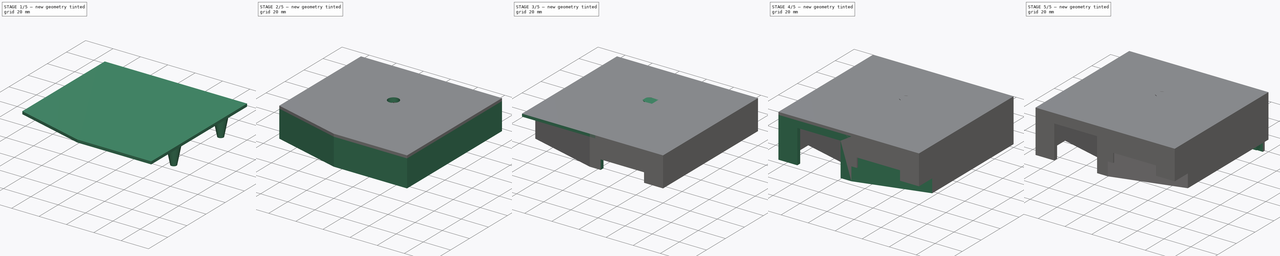
[diagram: build sequence overview — one tinted view per stage of 5, left to right]
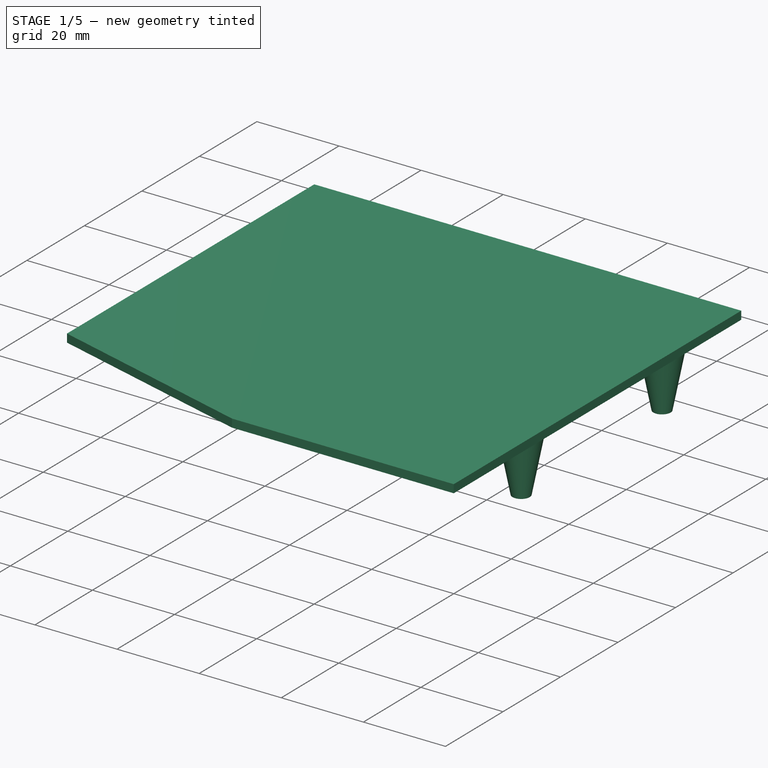
[diagram: stage 1 of 5 — iso view after this stage's code; geometry added in this stage tinted green]
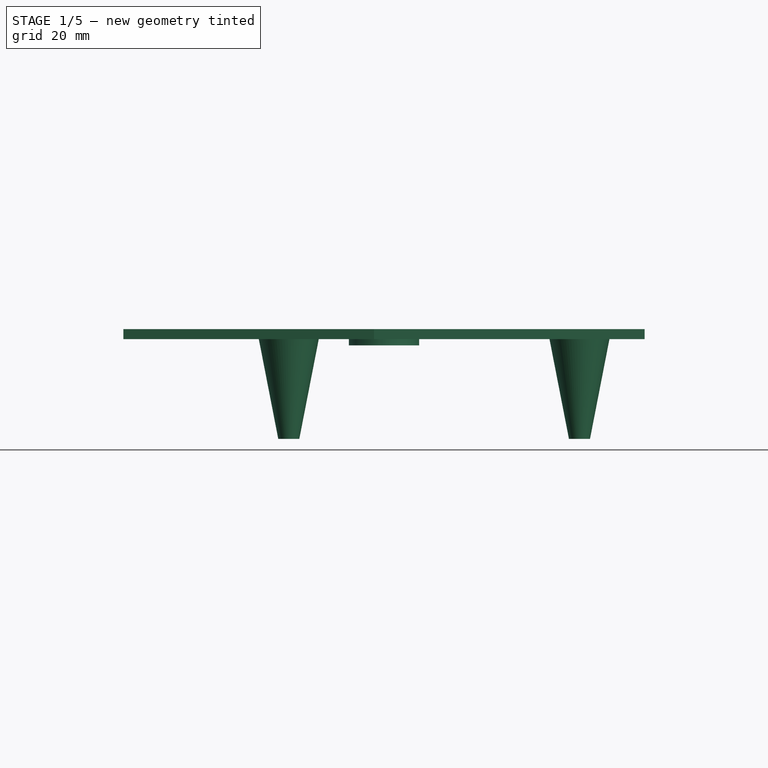
[diagram: stage 1 of 5 — front view after this stage's code; geometry added in this stage tinted green]
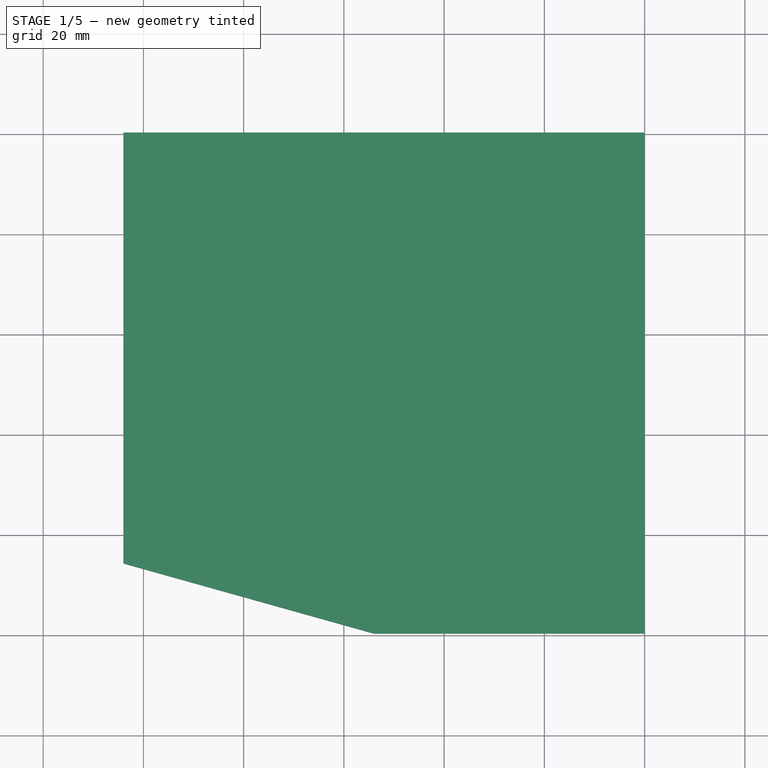
[diagram: stage 1 of 5 — top view after this stage's code; geometry added in this stage tinted green]
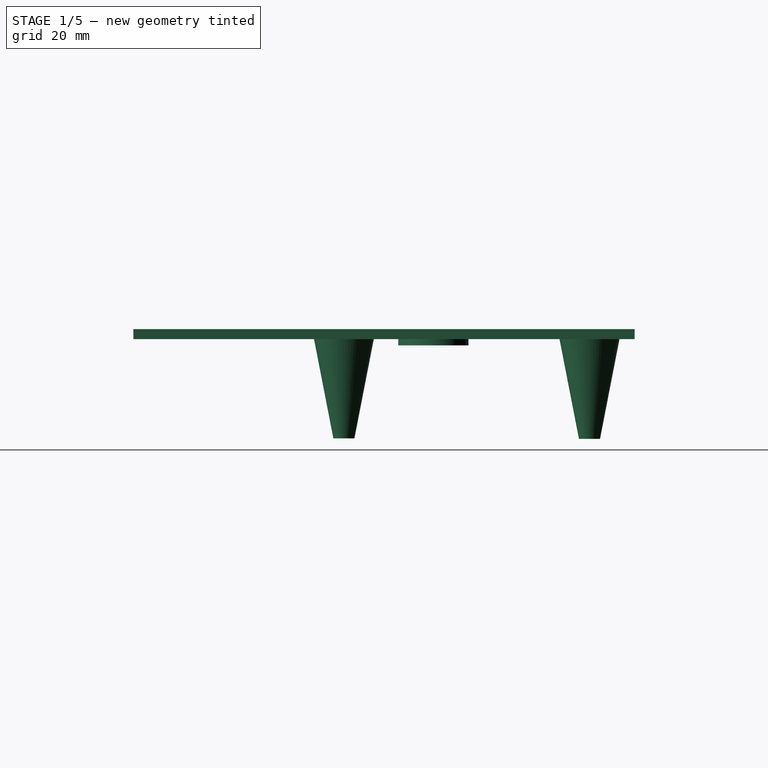
[diagram: stage 1 of 5 — right view after this stage's code; geometry added in this stage tinted green]
FCSTD DOCUMENT  (FreeCAD 0.21R)
Label: case
License: All rights reserved
LicenseURL: http://en.wikipedia.org/wiki/All_rights_reserved
objects: Sketcher::SketchObject×16, Part::Extrusion×16, Part::Cone×8, Part::MultiFuse×6, Part::Cut×4, App::Part×3, Part::Cylinder×1
note: 51 computed .brp shape members not serialized (recipe doc carries the construction recipe); baked Part::Feature solids carry a one-line shape summary decoded from their .brp

FEATURE [Sketcher::SketchObject] Sketch007  label="base_upper"
  FullyConstrained = true
  sketch-geometry (5):
    g0: LineSegment StartX=0 StartY=0 StartZ=0 EndX=0 EndY=-100 EndZ=0
    g1: LineSegment StartX=0 StartY=0 StartZ=0 EndX=-104 EndY=0 EndZ=0
    g2: LineSegment StartX=-104 StartY=0 StartZ=0 EndX=-104 EndY=-86 EndZ=0
    g3: LineSegment StartX=-104 StartY=-86 StartZ=0 EndX=-54 EndY=-100 EndZ=0
    g4: LineSegment StartX=-54 StartY=-100 StartZ=0 EndX=0 EndY=-100 EndZ=0
  constraints (15):
    c: Vertical(g0)
    c: Coincident(g1,g0)
    c: Horizontal(g1)
    c: Coincident(g2,g1)
    c: Vertical(g2)
    c: PointOnObject(g0,g-2)
    c: PointOnObject(g0,g-1)
    c: Distance(g1) = 104
    c: Distance(g2) = 86
    c: Coincident(g3,g2)
    c: Coincident(g4,g3)
    c: Coincident(g4,g0)
    c: Distance(g0) = 100
    c: Horizontal(g4)
    c: Distance(g4) = 54
FEATURE [Part::Extrusion] Extrude006
  Base = -> Sketch007
  Dir = (0,0,1)
  DirMode = 2
  FaceMakerClass = Part::FaceMakerBullseye
  LengthFwd = 2
  LengthRev = 0
  Solid = true
  Symmetric = false
FEATURE [Part::Cone] Cone004
  Angle = 360
  AttacherType = Attacher::AttachEngine3D
  Height = 20
  Placement = pos=(-13,-9,-19.9) rot=(0,0,1;3.14159rad)
  Radius1 = 2.1
  Radius2 = 6
FEATURE [Part::Cone] Cone005
  Angle = 360
  AttacherType = Attacher::AttachEngine3D
  Height = 20
  Placement = pos=(-13,-58,-19.8) rot=(0,0,1;3.14159rad)
  Radius1 = 2.1
  Radius2 = 6
FEATURE [Part::Cone] Cone006
  Angle = 360
  AttacherType = Attacher::AttachEngine3D
  Height = 20
  Placement = pos=(-71,-9,-19.9) rot=(0,0,1;0rad)
  Radius1 = 2.1
  Radius2 = 6
FEATURE [Part::Cone] Cone007
  Angle = 360
  AttacherType = Attacher::AttachEngine3D
  Height = 20
  Placement = pos=(-71,-58,-19.7) rot=(0,0,1;0rad)
  Radius1 = 2.1
  Radius2 = 6
FEATURE [App::Part] Part  label="Case lower (rpi)"
  Group = -> [Fusion,Sketch,Sketch001,Extrude,Sketch002,Extrude001,Extrude002,Sketch003,Extrude003,Cut,Cone,Cone001,Cone002,Cone003,Sketch011,Extrude010,Sketch018,Extrude017,Cut004,Fusion003]
  Origin = -> Origin
  Placement = pos=(0,0,0.3) rot=(0,0,1;0rad)
FEATURE [Part::Cylinder] Cylinder
  Angle = 360
  AttacherType = Attacher::AttachEngine3D
  FirstAngle = 0
  Height = 1.5
  Placement = pos=(-52,-40.15,0.25) rot=(1,0,0;3.14159rad)
  Radius = 7
  SecondAngle = 0
FEATURE [Part::MultiFuse] Fusion005
  Shapes = -> [Extrude006,Cylinder]
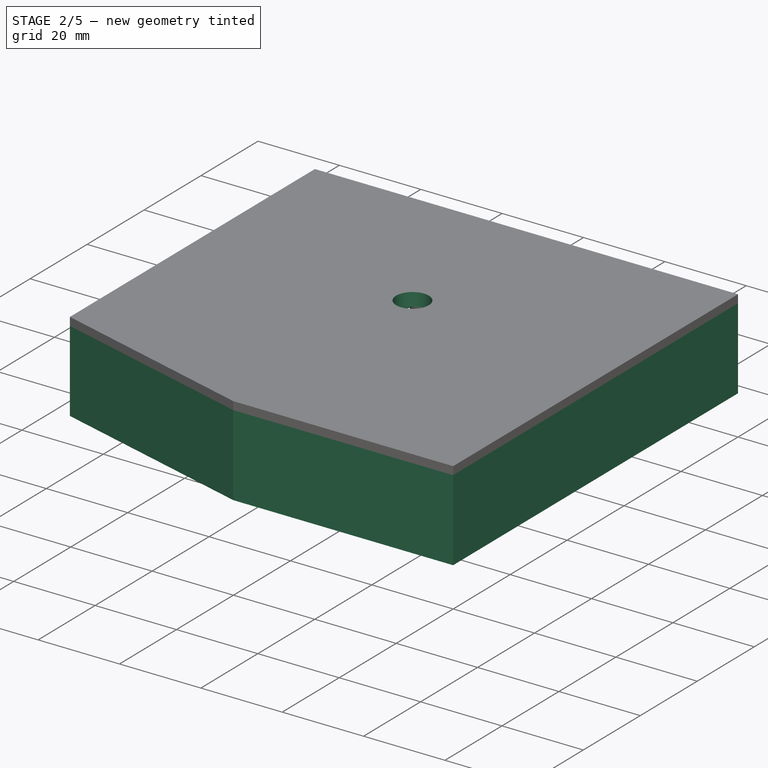
[diagram: stage 2 of 5 — iso view after this stage's code; geometry added in this stage tinted green]
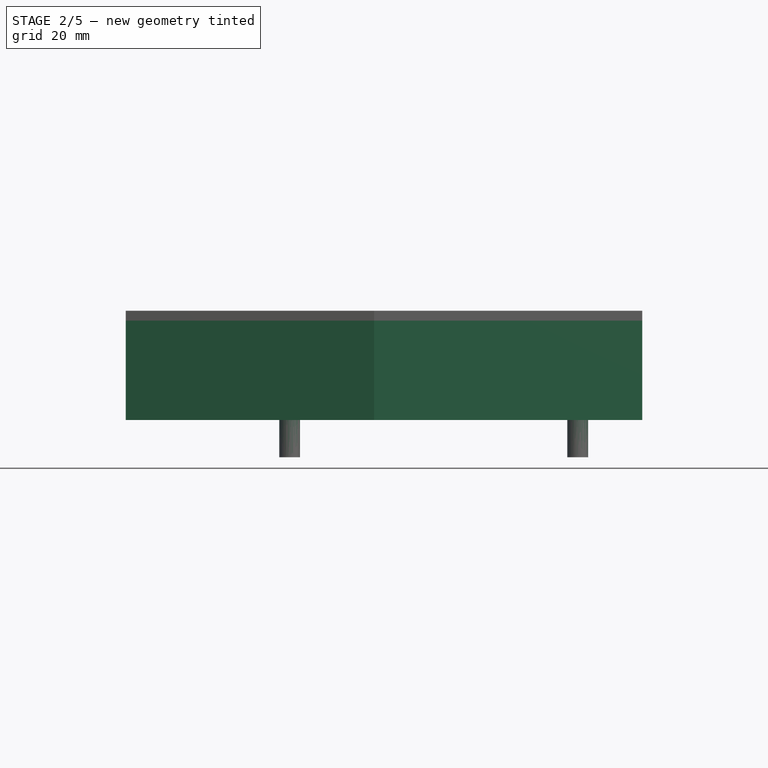
[diagram: stage 2 of 5 — front view after this stage's code; geometry added in this stage tinted green]
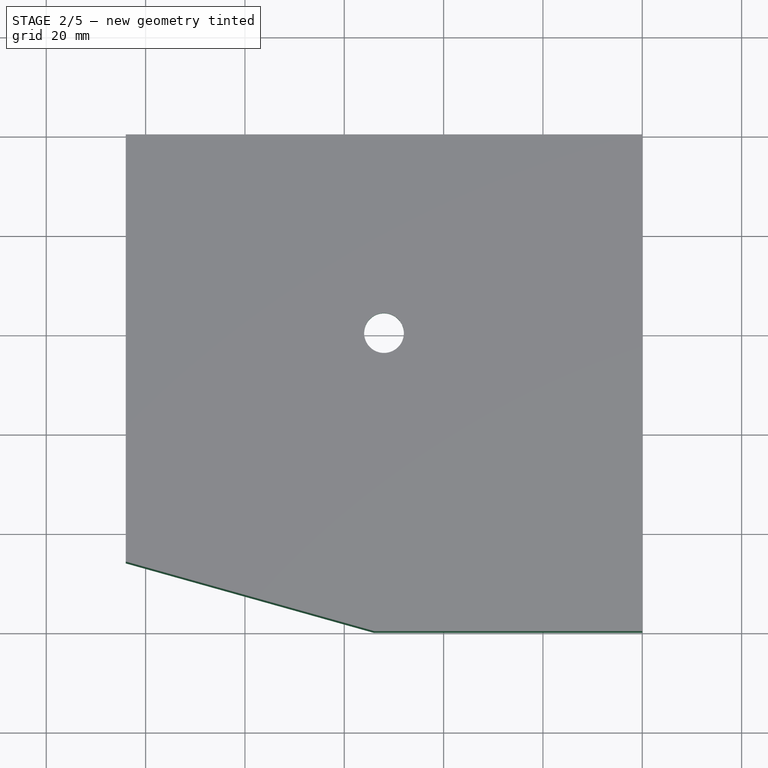
[diagram: stage 2 of 5 — top view after this stage's code; geometry added in this stage tinted green]
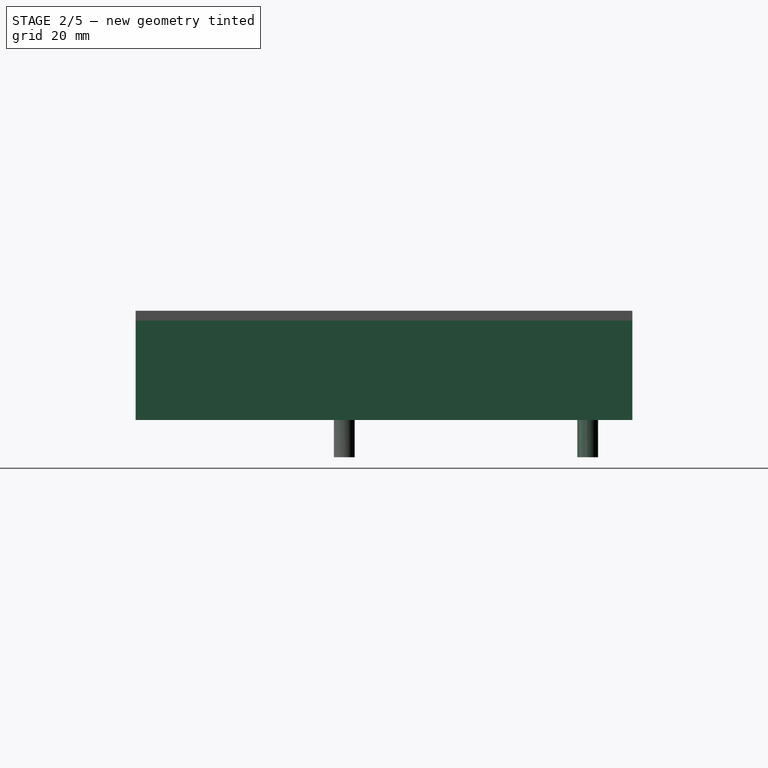
[diagram: stage 2 of 5 — right view after this stage's code; geometry added in this stage tinted green]
FEATURE [Sketcher::SketchObject] Sketch005  label="cam mounting cones"
  FullyConstrained = true
  sketch-geometry (5):
    g0: Circle CenterX=-62.5 CenterY=-27.5 CenterZ=0 NormalX=0 NormalY=0 NormalZ=1 AngleXU=0 Radius=2.1
    g1: Circle CenterX=-41.5 CenterY=-27.5 CenterZ=0 NormalX=0 NormalY=0 NormalZ=1 AngleXU=0 Radius=2.1
    g2: Circle CenterX=-41.5 CenterY=-40 CenterZ=0 NormalX=0 NormalY=0 NormalZ=1 AngleXU=0 Radius=2.1
    g3: Circle CenterX=-62.5 CenterY=-40 CenterZ=0 NormalX=0 NormalY=0 NormalZ=1 AngleXU=0 Radius=2.1
    g4: GeomPoint X=-52 Y=-40 Z=0
  constraints (14):
    c: Diameter(g0) = 4.2
    c: DistanceX(g0,g1) = 21
    c: DistanceY(g2,g1) = 12.5
    c: DistanceX(g3,g2) = 21
    c: DistanceY(g3,g0) = 12.5
    c: DistanceX(g1,g2) = 0
    c: DistanceY(g0,g1) = 0
    c: Equal(g0,g1)
    c: Equal(g1,g2)
    c: Equal(g2,g3)
    c: DistanceX(g4,g-1) = 52
    c: DistanceY(g4,g-1) = 40
    c: DistanceX(g4,g1) = 10.5
    c: DistanceY(g2,g4) = 0
FEATURE [Part::Extrusion] Extrude007
  Base = -> Sketch005
  Dir = (0,0,1)
  DirMode = 2
  FaceMakerClass = Part::FaceMakerBullseye
  LengthFwd = 0
  LengthRev = 4
  Solid = true
  Symmetric = false
FEATURE [Sketcher::SketchObject] Sketch006  label="walls_upper"
  FullyConstrained = true
  sketch-geometry (10):
    g0: LineSegment StartX=-3 StartY=-3 StartZ=0 EndX=-3 EndY=-97 EndZ=0
    g1: LineSegment StartX=-101 StartY=-3 StartZ=0 EndX=-101 EndY=-83.84 EndZ=0
    g2: LineSegment StartX=-101 StartY=-3 StartZ=0 EndX=-3 EndY=-3 EndZ=0
    g3: LineSegment StartX=0 StartY=0 StartZ=0 EndX=0 EndY=-100 EndZ=0
    g4: LineSegment StartX=0 StartY=0 StartZ=0 EndX=-104 EndY=0 EndZ=0
    g5: LineSegment StartX=-104 StartY=0 StartZ=0 EndX=-104 EndY=-86 EndZ=0
    g6: LineSegment StartX=-104 StartY=-86 StartZ=0 EndX=-54 EndY=-100 EndZ=0
    g7: LineSegment StartX=-54 StartY=-100 StartZ=0 EndX=0 EndY=-100 EndZ=0
    g8: LineSegment StartX=-101 StartY=-83.84 StartZ=0 EndX=-54 EndY=-97 EndZ=0
    g9: LineSegment StartX=-54 StartY=-97 StartZ=0 EndX=-3 EndY=-97 EndZ=0
  constraints (30):
    c: Vertical(g0)
    c: Vertical(g1)
    c: Coincident(g2,g1)
    c: Coincident(g2,g0)
    c: Horizontal(g2)
    c: Vertical(g3)
    c: DistanceX(g0,g3) = 3
    c: Coincident(g4,g3)
    c: Horizontal(g4)
    c: Coincident(g5,g4)
    c: Vertical(g5)
    c: DistanceY(g1,g4) = 3
    c: DistanceX(g4,g1) = 3
    c: Distance(g4) = 104
    c: PointOnObject(g3,g-2)
    c: PointOnObject(g3,g-1)
    c: Distance(g5) = 86
    c: Coincident(g6,g5)
    c: Coincident(g7,g6)
    c: Coincident(g7,g3)
    c: Coincident(g8,g1)
    c: Distance(g3) = 100
    c: DistanceX(g8,g6) = 0
    c: Coincident(g9,g8)
    c: Coincident(g9,g0)
    c: Distance(g7) = 54
    c: Parallel(g8,g6)
    c: DistanceY(g3,g0) = 3
    c: Horizontal(g9)
    c: Horizontal(g7)
FEATURE [Part::Extrusion] Extrude005
  Base = -> Sketch006
  Dir = (0,0,1)
  DirMode = 2
  FaceMakerClass = Part::FaceMakerBullseye
  LengthFwd = 0
  LengthRev = 20
  Solid = true
  Symmetric = false
FEATURE [Sketcher::SketchObject] Sketch008  label="camera hole"
  FullyConstrained = true
  sketch-geometry (1):
    g0: Circle CenterX=-52 CenterY=-40 CenterZ=0 NormalX=0 NormalY=0 NormalZ=1 AngleXU=0 Radius=4
  constraints (3):
    c: DistanceY(g0,g-1) = 40
    c: DistanceX(g0,g-1) = 52
    c: Diameter(g0) = 8
FEATURE [Part::Extrusion] Extrude008
  Base = -> Sketch008
  Dir = (0,0,1)
  DirMode = 2
  FaceMakerClass = Part::FaceMakerBullseye
  LengthFwd = 5
  LengthRev = 5
  Solid = true
  Symmetric = false
FEATURE [Sketcher::SketchObject] Sketch012  label="cam mounting cones001"
  FullyConstrained = true
  sketch-geometry (5):
    g0: Circle CenterX=-62.5 CenterY=-27.5 CenterZ=0 NormalX=0 NormalY=0 NormalZ=1 AngleXU=0 Radius=0.95
    g1: Circle CenterX=-41.5 CenterY=-27.5 CenterZ=0 NormalX=0 NormalY=0 NormalZ=1 AngleXU=0 Radius=0.95
    g2: Circle CenterX=-41.5 CenterY=-40 CenterZ=0 NormalX=0 NormalY=0 NormalZ=1 AngleXU=0 Radius=0.95
    g3: Circle CenterX=-62.5 CenterY=-40 CenterZ=0 NormalX=0 NormalY=0 NormalZ=1 AngleXU=0 Radius=0.95
    g4: GeomPoint X=-52 Y=-40 Z=0
  constraints (14):
    c: Diameter(g0) = 1.9
    c: DistanceX(g0,g1) = 21
    c: DistanceY(g2,g1) = 12.5
    c: DistanceX(g3,g2) = 21
    c: DistanceY(g3,g0) = 12.5
    c: DistanceX(g1,g2) = 0
    c: DistanceY(g0,g1) = 0
    c: Equal(g0,g1)
    c: Equal(g1,g2)
    c: Equal(g2,g3)
    c: DistanceX(g4,g-1) = 52
    c: DistanceY(g4,g-1) = 40
    c: DistanceX(g4,g1) = 10.5
    c: DistanceY(g2,g4) = 0
FEATURE [Part::Extrusion] Extrude011
  Base = -> Sketch012
  Dir = (0,0,1)
  DirMode = 2
  FaceMakerClass = Part::FaceMakerBullseye
  LengthFwd = 0
  LengthRev = 7
  Solid = true
  Symmetric = false
FEATURE [Sketcher::SketchObject] Sketch013  label="rpi mounting cones002"
  FullyConstrained = true
  sketch-geometry (8):
    g0: Circle CenterX=-71 CenterY=-9 CenterZ=0 NormalX=0 NormalY=0 NormalZ=1 AngleXU=0 Radius=2.1
    g1: Circle CenterX=-13 CenterY=-9 CenterZ=0 NormalX=0 NormalY=0 NormalZ=1 AngleXU=0 Radius=2.1
    g2: Circle CenterX=-13 CenterY=-58 CenterZ=0 NormalX=0 NormalY=0 NormalZ=1 AngleXU=0 Radius=2.1
    g3: Circle CenterX=-71 CenterY=-58 CenterZ=0 NormalX=0 NormalY=0 NormalZ=1 AngleXU=0 Radius=2.1
    g4: Circle CenterX=-71 CenterY=-9 CenterZ=0 NormalX=0 NormalY=0 NormalZ=1 AngleXU=0 Radius=1.25
    g5: Circle CenterX=-13 CenterY=-9 CenterZ=0 NormalX=0 NormalY=0 NormalZ=1 AngleXU=0 Radius=1.25
    g6: Circle CenterX=-13 CenterY=-58 CenterZ=0 NormalX=0 NormalY=0 NormalZ=1 AngleXU=0 Radius=1.25
    g7: Circle CenterX=-71 CenterY=-58 CenterZ=0 NormalX=0 NormalY=0 NormalZ=1 AngleXU=0 Radius=1.25
  constraints (20):
    c: Diameter(g0) = 4.2
    c: DistanceX(g0,g1) = 58
    c: DistanceY(g2,g1) = 49
    c: DistanceX(g3,g2) = 58
    c: DistanceY(g3,g0) = 49
    c: DistanceX(g1,g-1) = 13
    c: DistanceY(g1,g-1) = 9
    c: DistanceX(g1,g2) = 0
    c: DistanceY(g0,g1) = 0
    c: Equal(g0,g1)
    c: Equal(g1,g2)
    c: Equal(g2,g3)
    c: Coincident(g4,g0)
    c: Coincident(g5,g1)
    c: Coincident(g6,g2)
    c: Coincident(g7,g3)
    c: Equal(g4,g5)
    c: Equal(g4,g6)
    c: Equal(g4,g7)
    c: Diameter(g4) = 2.5
FEATURE [Part::Extrusion] Extrude012
  Base = -> Sketch013
  Dir = (0,0,1)
  DirMode = 2
  FaceMakerClass = Part::FaceMakerBullseye
  LengthFwd = 0
  LengthRev = 27.5
  Solid = true
  Symmetric = false
FEATURE [Part::Cut] Cut002
  Base = -> Fusion005
  Tool = -> Extrude008
FEATURE [Part::MultiFuse] Fusion001
  Shapes = -> [Extrude005,Extrude007,Cut002,Extrude011,Extrude012]
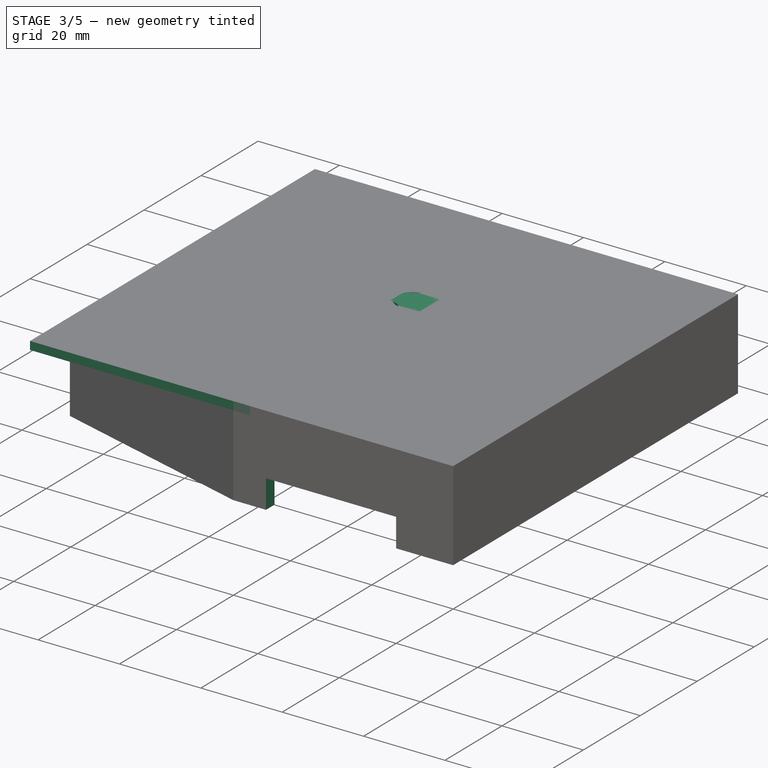
[diagram: stage 3 of 5 — iso view after this stage's code; geometry added in this stage tinted green]
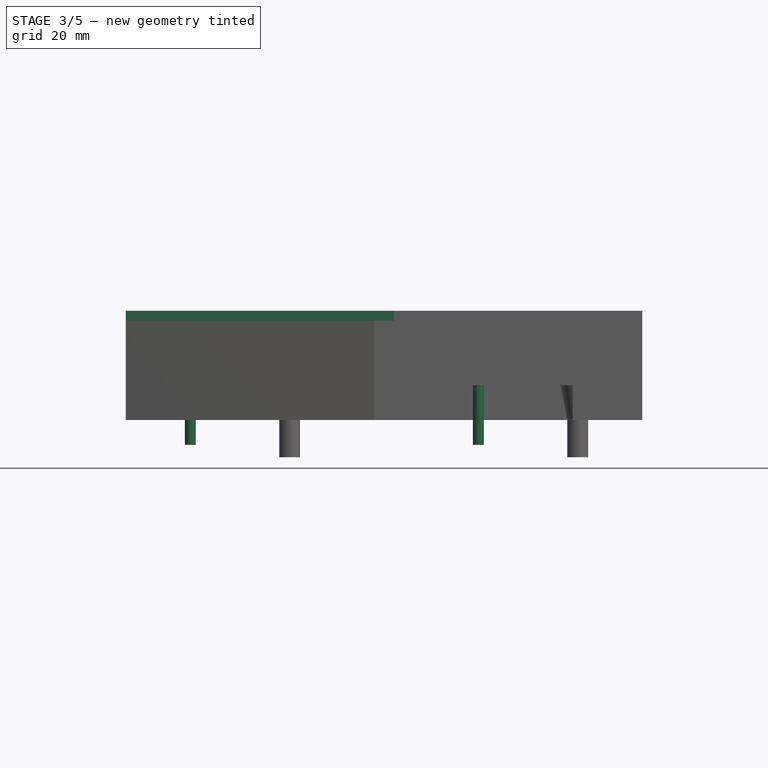
[diagram: stage 3 of 5 — front view after this stage's code; geometry added in this stage tinted green]
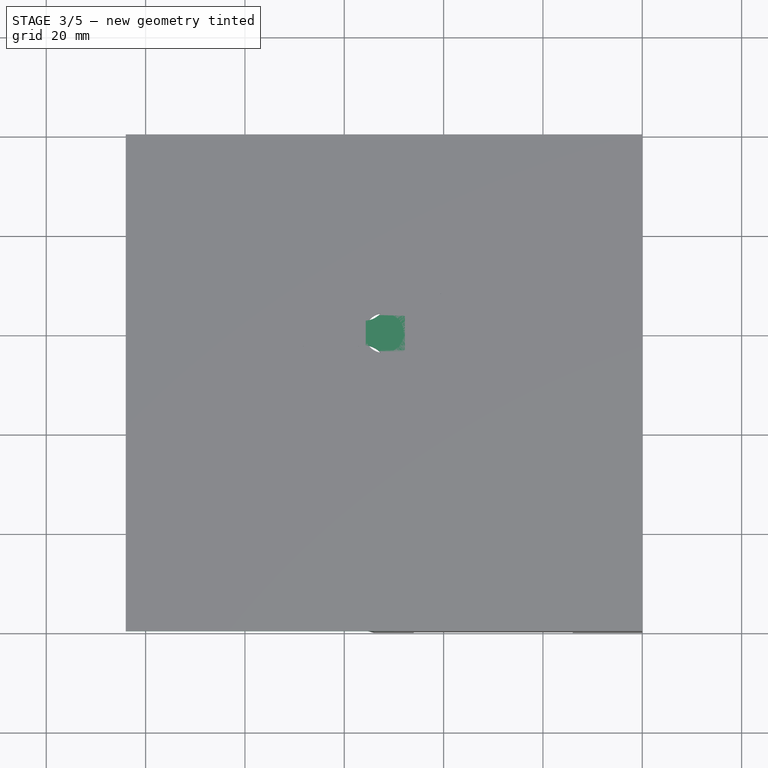
[diagram: stage 3 of 5 — top view after this stage's code; geometry added in this stage tinted green]
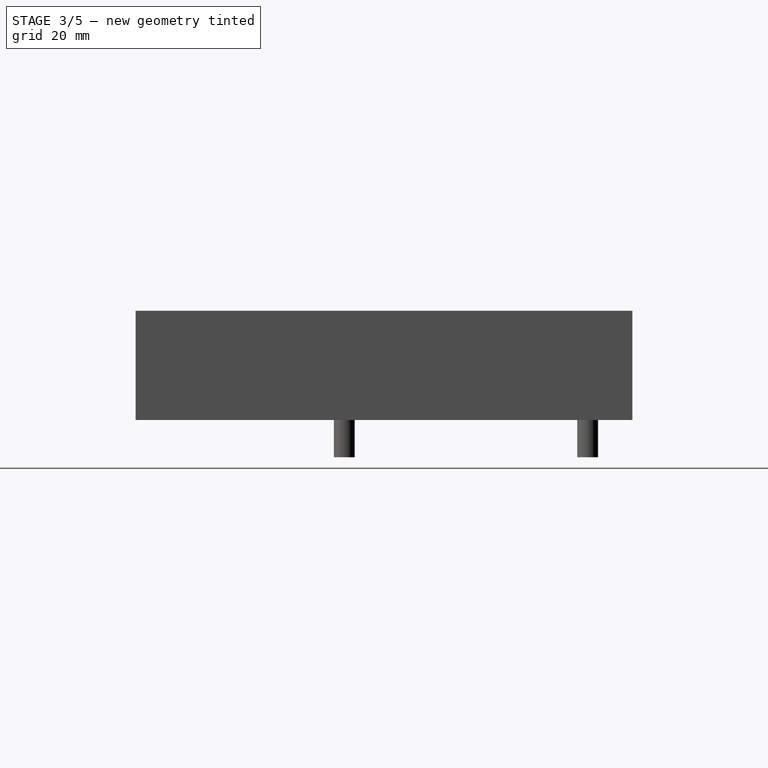
[diagram: stage 3 of 5 — right view after this stage's code; geometry added in this stage tinted green]
FEATURE [Sketcher::SketchObject] Sketch002  label="base"
  FullyConstrained = true
  sketch-geometry (5):
    g0: LineSegment StartX=0 StartY=0 StartZ=0 EndX=0 EndY=-86 EndZ=0
    g1: LineSegment StartX=0 StartY=0 StartZ=0 EndX=-104 EndY=0 EndZ=0
    g2: LineSegment StartX=-104 StartY=0 StartZ=0 EndX=-104 EndY=-100 EndZ=0
    g3: LineSegment StartX=-104 StartY=-100 StartZ=0 EndX=-50 EndY=-100 EndZ=0
    g4: LineSegment StartX=0 StartY=-86 StartZ=0 EndX=-50 EndY=-100 EndZ=0
  constraints (15):
    c: Vertical(g0)
    c: Coincident(g1,g0)
    c: Horizontal(g1)
    c: Coincident(g2,g1)
    c: Vertical(g2)
    c: PointOnObject(g0,g-2)
    c: PointOnObject(g0,g-1)
    c: Distance(g1) = 104
    c: Distance(g2) = 100
    c: Coincident(g3,g2)
    c: Horizontal(g3)
    c: Distance(g0) = 86
    c: Coincident(g4,g0)
    c: Coincident(g4,g3)
    c: Distance(g3) = 54
FEATURE [Part::Extrusion] Extrude001
  Base = -> Sketch002
  Dir = (0,0,1)
  DirMode = 2
  FaceMakerClass = Part::FaceMakerBullseye
  LengthFwd = 2
  LengthRev = 0
  Solid = true
  Symmetric = false
FEATURE [Sketcher::SketchObject] Sketch003  label="air flow holes"
  FullyConstrained = true
  sketch-geometry (12):
    g0: Circle CenterX=-78 CenterY=-19 CenterZ=0 NormalX=0 NormalY=0 NormalZ=1 AngleXU=0 Radius=4.5
    g1: Circle CenterX=-67 CenterY=-19 CenterZ=0 NormalX=0 NormalY=0 NormalZ=1 AngleXU=0 Radius=4.5
    g2: Circle CenterX=-56 CenterY=-19 CenterZ=0 NormalX=0 NormalY=0 NormalZ=1 AngleXU=0 Radius=4.5
    g3: Circle CenterX=-45 CenterY=-19 CenterZ=0 NormalX=0 NormalY=0 NormalZ=1 AngleXU=0 Radius=4.5
    g4: Circle CenterX=-78 CenterY=-33 CenterZ=0 NormalX=0 NormalY=0 NormalZ=1 AngleXU=0 Radius=4.5
    g5: Circle CenterX=-67 CenterY=-33 CenterZ=0 NormalX=0 NormalY=0 NormalZ=1 AngleXU=0 Radius=4.5
    g6: Circle CenterX=-56 CenterY=-33 CenterZ=0 NormalX=0 NormalY=0 NormalZ=1 AngleXU=0 Radius=4.5
    g7: Circle CenterX=-45 CenterY=-33 CenterZ=0 NormalX=0 NormalY=0 NormalZ=1 AngleXU=0 Radius=4.5
    g8: Circle CenterX=-78 CenterY=-47 CenterZ=0 NormalX=0 NormalY=0 NormalZ=1 AngleXU=0 Radius=4.5
    g9: Circle CenterX=-67 CenterY=-47 CenterZ=0 NormalX=0 NormalY=0 NormalZ=1 AngleXU=0 Radius=4.5
    g10: Circle CenterX=-56 CenterY=-47 CenterZ=0 NormalX=0 NormalY=0 NormalZ=1 AngleXU=0 Radius=4.5
    g11: Circle CenterX=-45 CenterY=-47 CenterZ=0 NormalX=0 NormalY=0 NormalZ=1 AngleXU=0 Radius=4.5
  constraints (36):
    c: Equal(g0,g1)
    c: Equal(g1,g2)
    c: Equal(g2,g3)
    c: Equal(g3,g4)
    c: Equal(g4,g5)
    c: Equal(g5,g6)
    c: Equal(g6,g7)
    c: Equal(g7,g8)
    c: Equal(g8,g9)
    c: Equal(g9,g10)
    c: Equal(g10,g11)
    c: Horizontal(g0,g1)
    c: Horizontal(g1,g2)
    c: Horizontal(g2,g3)
    c: Horizontal(g4,g5)
    c: Horizontal(g5,g6)
    c: Horizontal(g6,g7)
    c: Horizontal(g8,g9)
    c: Horizontal(g9,g10)
    c: Horizontal(g10,g11)
    c: Vertical(g0,g4)
    c: Vertical(g4,g8)
    c: Vertical(g1,g5)
    c: Vertical(g5,g9)
    c: Vertical(g2,g6)
    c: Vertical(g6,g10)
    c: Vertical(g3,g7)
    c: Vertical(g7,g11)
    c: DistanceY(g7,g3) = 14
    c: DistanceY(g11,g7) = 14
    c: DistanceY(g3,g-1) = 19
    c: DistanceX(g3,g-1) = 45
    c: DistanceX(g2,g3) = 11
    c: DistanceX(g1,g2) = 11
    c: DistanceX(g0,g1) = 11
    c: Diameter(g3) = 9
FEATURE [Part::Extrusion] Extrude003
  Base = -> Sketch003
  Dir = (0,0,1)
  DirMode = 2
  FaceMakerClass = Part::FaceMakerBullseye
  LengthFwd = 3
  LengthRev = 1
  Solid = true
  Symmetric = false
FEATURE [Part::Cut] Cut
  Base = -> Extrude001
  Tool = -> Extrude003
FEATURE [Sketcher::SketchObject] Sketch011  label="rpi mounting cones001"
  FullyConstrained = true
  sketch-geometry (4):
    g0: Circle CenterX=-91 CenterY=-9 CenterZ=0 NormalX=0 NormalY=0 NormalZ=1 AngleXU=0 Radius=1.1
    g1: Circle CenterX=-33 CenterY=-9 CenterZ=0 NormalX=0 NormalY=0 NormalZ=1 AngleXU=0 Radius=1.1
    g2: Circle CenterX=-33 CenterY=-58 CenterZ=0 NormalX=0 NormalY=0 NormalZ=1 AngleXU=0 Radius=1.1
    g3: Circle CenterX=-91 CenterY=-58 CenterZ=0 NormalX=0 NormalY=0 NormalZ=1 AngleXU=0 Radius=1.1
  constraints (12):
    c: Diameter(g0) = 2.2
    c: DistanceX(g0,g1) = 58
    c: DistanceY(g2,g1) = 49
    c: DistanceX(g3,g2) = 58
    c: DistanceY(g3,g0) = 49
    c: DistanceX(g1,g-1) = 33
    c: DistanceY(g1,g-1) = 9
    c: DistanceX(g1,g2) = 0
    c: DistanceY(g0,g1) = 0
    c: Equal(g0,g1)
    c: Equal(g1,g2)
    c: Equal(g2,g3)
FEATURE [Part::Extrusion] Extrude010
  Base = -> Sketch011
  Dir = (0,0,1)
  DirMode = 2
  FaceMakerClass = Part::FaceMakerBullseye
  LengthFwd = -25
  LengthRev = 0
  Solid = true
  Symmetric = false
FEATURE [Sketcher::SketchObject] Sketch009  label="cable hole upper"
  FullyConstrained = true
  MapMode = 5
  Placement = pos=(0,-100,0) rot=(1,0,0;1.5708rad)
  Support = -> [Fusion001]
  sketch-geometry (4):
    g0: LineSegment StartX=-46 StartY=-13 StartZ=0 EndX=-14 EndY=-13 EndZ=0
    g1: LineSegment StartX=-14 StartY=-13 StartZ=0 EndX=-14 EndY=-45 EndZ=0
    g2: LineSegment StartX=-14 StartY=-45 StartZ=0 EndX=-46 EndY=-45 EndZ=0
    g3: LineSegment StartX=-46 StartY=-45 StartZ=0 EndX=-46 EndY=-13 EndZ=0
  constraints (12):
    c: Coincident(g0,g1)
    c: Coincident(g1,g2)
    c: Coincident(g2,g3)
    c: Coincident(g3,g0)
    c: Horizontal(g0)
    c: Horizontal(g2)
    c: Vertical(g1)
    c: Vertical(g3)
    c: Distance(g1) = 32
    c: Distance(g0) = 32
    c: DistanceX(g0,g-1) = 14
    c: DistanceY(g0,g-1) = 13
FEATURE [Part::Extrusion] Extrude009
  Base = -> Sketch009
  Dir = (0,-1,2e-16)
  DirMode = 2
  FaceMakerClass = Part::FaceMakerBullseye
  LengthFwd = 0
  LengthRev = 3
  Solid = true
  Symmetric = false
FEATURE [Part::Cut] Cut003
  Base = -> Fusion001
  Tool = -> Extrude009
FEATURE [Part::MultiFuse] Fusion004
  Shapes = -> [Cut003,Cone004,Cone005,Cone006,Cone007]
FEATURE [App::Part] Part001  label="Case upper"
  Group = -> [Cut002,Cut003,Extrude005,Extrude006,Extrude007,Extrude008,Extrude009,Fusion001,Sketch005,Sketch006,Sketch007,Sketch008,Sketch009,Sketch012,Extrude011,Sketch013,Extrude012,Cone004,Cone005,Cone006,Cone007,Fusion004,Cylinder,Fusion005]
  Origin = -> Origin001
  Placement = pos=(-104,0,-49.8) rot=(0,1,0;3.14159rad)
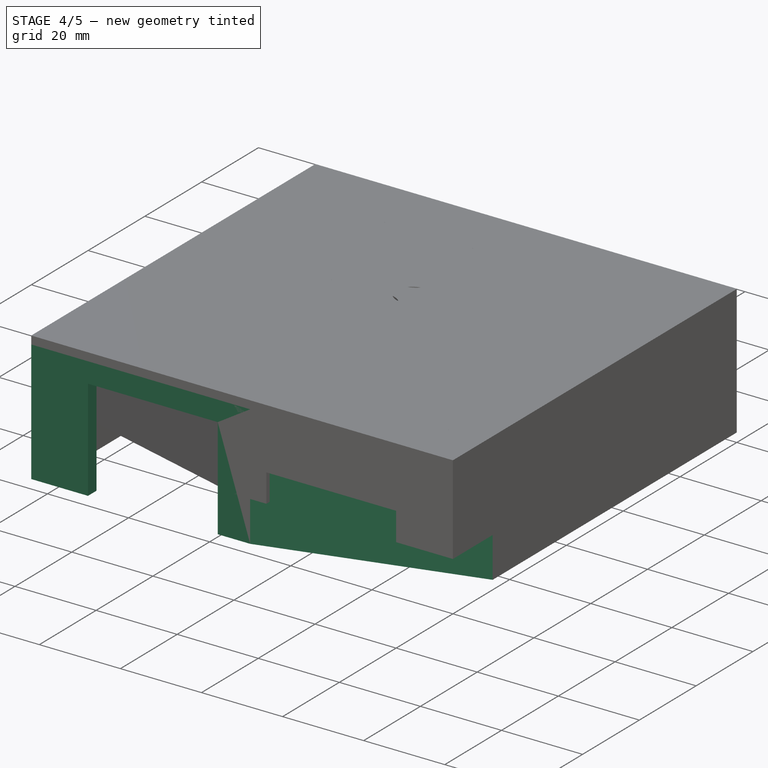
[diagram: stage 4 of 5 — iso view after this stage's code; geometry added in this stage tinted green]
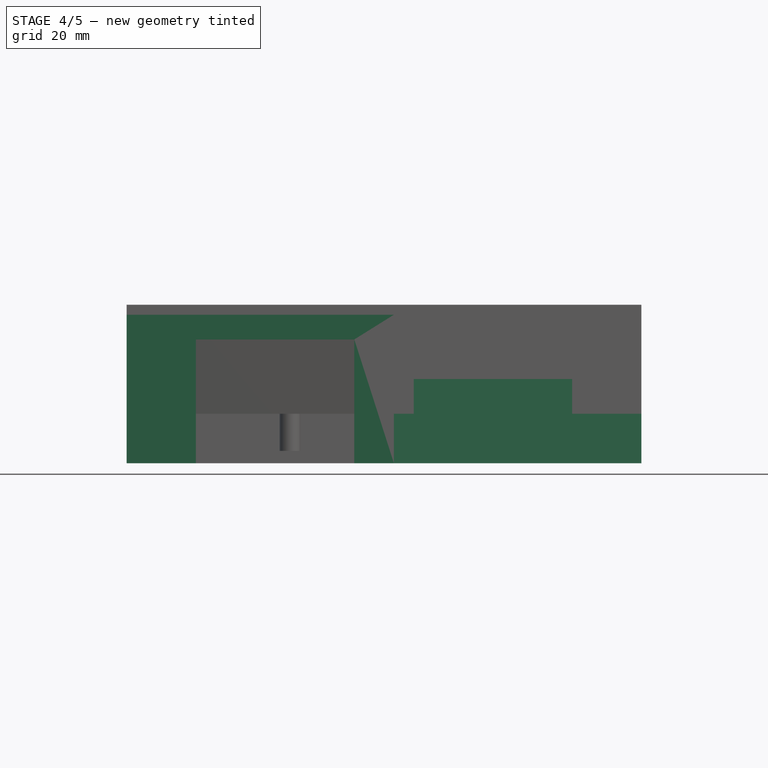
[diagram: stage 4 of 5 — front view after this stage's code; geometry added in this stage tinted green]
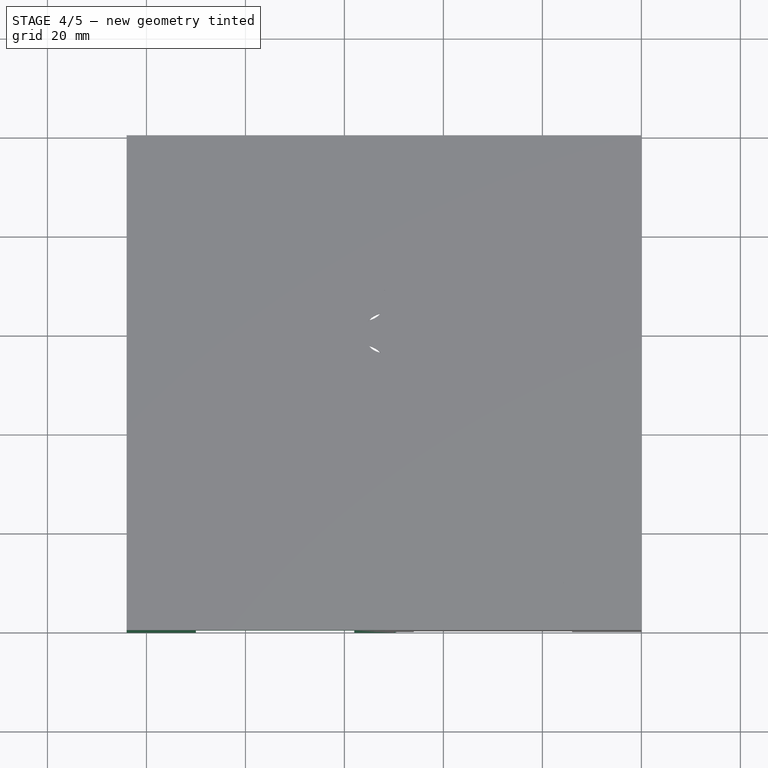
[diagram: stage 4 of 5 — top view after this stage's code; geometry added in this stage tinted green]
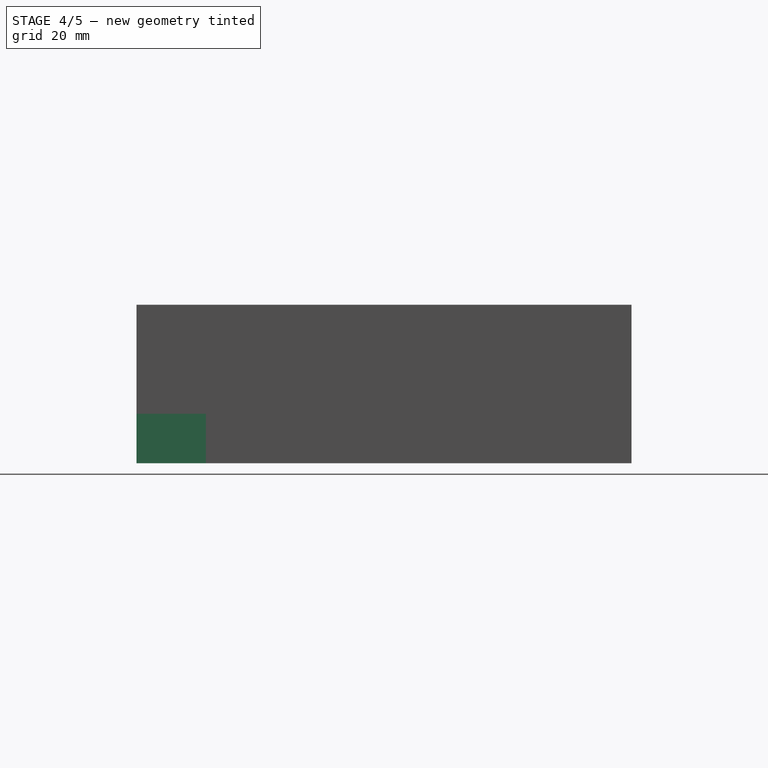
[diagram: stage 4 of 5 — right view after this stage's code; geometry added in this stage tinted green]
FEATURE [Sketcher::SketchObject] Sketch  label="rpi mounting cones"
  FullyConstrained = true
  sketch-geometry (4):
    g0: Circle CenterX=-91 CenterY=-9 CenterZ=0 NormalX=0 NormalY=0 NormalZ=1 AngleXU=0 Radius=2.1
    g1: Circle CenterX=-33 CenterY=-9 CenterZ=0 NormalX=0 NormalY=0 NormalZ=1 AngleXU=0 Radius=2.1
    g2: Circle CenterX=-33 CenterY=-58 CenterZ=0 NormalX=0 NormalY=0 NormalZ=1 AngleXU=0 Radius=2.1
    g3: Circle CenterX=-91 CenterY=-58 CenterZ=0 NormalX=0 NormalY=0 NormalZ=1 AngleXU=0 Radius=2.1
  constraints (12):
    c: Diameter(g0) = 4.2
    c: DistanceX(g0,g1) = 58
    c: DistanceY(g2,g1) = 49
    c: DistanceX(g3,g2) = 58
    c: DistanceY(g3,g0) = 49
    c: DistanceX(g1,g-1) = 33
    c: DistanceY(g1,g-1) = 9
    c: DistanceX(g1,g2) = 0
    c: DistanceY(g0,g1) = 0
    c: Equal(g0,g1)
    c: Equal(g1,g2)
    c: Equal(g2,g3)
FEATURE [Sketcher::SketchObject] Sketch001  label="walls"
  FullyConstrained = true
  sketch-geometry (10):
    g0: LineSegment StartX=-3 StartY=-3 StartZ=0 EndX=-3 EndY=-83.84 EndZ=0
    g1: LineSegment StartX=-101 StartY=-3 StartZ=0 EndX=-101 EndY=-97 EndZ=0
    g2: LineSegment StartX=-101 StartY=-3 StartZ=0 EndX=-3 EndY=-3 EndZ=0
    g3: LineSegment StartX=0 StartY=0 StartZ=0 EndX=0 EndY=-86 EndZ=0
    g4: LineSegment StartX=0 StartY=0 StartZ=0 EndX=-104 EndY=0 EndZ=0
    g5: LineSegment StartX=-104 StartY=0 StartZ=0 EndX=-104 EndY=-100 EndZ=0
    g6: LineSegment StartX=-104 StartY=-100 StartZ=0 EndX=-50 EndY=-100 EndZ=0
    g7: LineSegment StartX=0 StartY=-86 StartZ=0 EndX=-50 EndY=-100 EndZ=0
    g8: LineSegment StartX=-101 StartY=-97 StartZ=0 EndX=-50 EndY=-97 EndZ=0
    g9: LineSegment StartX=-50 StartY=-97 StartZ=0 EndX=-3 EndY=-83.84 EndZ=0
  constraints (30):
    c: Vertical(g0)
    c: Vertical(g1)
    c: Coincident(g2,g1)
    c: Coincident(g2,g0)
    c: Horizontal(g2)
    c: Vertical(g3)
    c: DistanceX(g0,g3) = 3
    c: Coincident(g4,g3)
    c: Horizontal(g4)
    c: Coincident(g5,g4)
    c: Vertical(g5)
    c: DistanceY(g1,g4) = 3
    c: DistanceX(g4,g1) = 3
    c: DistanceY(g5,g1) = 3
    c: Distance(g4) = 104
    c: PointOnObject(g3,g-2)
    c: PointOnObject(g3,g-1)
    c: Distance(g3) = 86
    c: Distance(g5) = 100
    c: Coincident(g6,g5)
    c: Horizontal(g6)
    c: Distance(g6) = 54
    c: Coincident(g7,g3)
    c: Coincident(g7,g6)
    c: Coincident(g8,g1)
    c: Horizontal(g8)
    c: Coincident(g9,g8)
    c: Coincident(g9,g0)
    c: DistanceX(g8,g6) = 0
    c: Parallel(g9,g7)
FEATURE [Part::Extrusion] Extrude
  Base = -> Sketch001
  Dir = (0,0,1)
  DirMode = 2
  FaceMakerClass = Part::FaceMakerBullseye
  LengthFwd = 0
  LengthRev = 30
  Solid = true
  Symmetric = false
FEATURE [Part::Extrusion] Extrude002
  Base = -> Sketch
  Dir = (0,0,1)
  DirMode = 2
  FaceMakerClass = Part::FaceMakerBullseye
  LengthFwd = 0
  LengthRev = 20
  Solid = true
  Symmetric = false
FEATURE [Part::MultiFuse] Fusion
  Shapes = -> [Extrude,Extrude002,Cut,Extrude010]
FEATURE [Part::Cone] Cone002
  Angle = 360
  AttacherType = Attacher::AttachEngine3D
  Height = 20
  Placement = pos=(-33,-58.1,-19.4) rot=(0,0,1;0rad)
  Radius1 = 2.1
  Radius2 = 6
FEATURE [Part::Cone] Cone003
  Angle = 360
  AttacherType = Attacher::AttachEngine3D
  Height = 20
  Placement = pos=(-90.9,-58.2,-19.4) rot=(0,0,1;0rad)
  Radius1 = 2.1
  Radius2 = 6
FEATURE [Sketcher::SketchObject] Sketch018
  FullyConstrained = true
  MapMode = 5
  Placement = pos=(0,-100,0) rot=(1,0,0;1.5708rad)
  Support = -> [Fusion]
  sketch-geometry (4):
    g0: LineSegment StartX=-90 StartY=-5 StartZ=0 EndX=-58 EndY=-5 EndZ=0
    g1: LineSegment StartX=-58 StartY=-5 StartZ=0 EndX=-58 EndY=-37 EndZ=0
    g2: LineSegment StartX=-58 StartY=-37 StartZ=0 EndX=-90 EndY=-37 EndZ=0
    g3: LineSegment StartX=-90 StartY=-37 StartZ=0 EndX=-90 EndY=-5 EndZ=0
  constraints (12):
    c: Coincident(g0,g1)
    c: Coincident(g1,g2)
    c: Coincident(g2,g3)
    c: Coincident(g3,g0)
    c: Horizontal(g0)
    c: Horizontal(g2)
    c: Vertical(g1)
    c: Vertical(g3)
    c: Distance(g2) = 32
    c: Distance(g3) = 32
    c: DistanceY(g0,g-1) = 5
    c: DistanceX(g0,g-1) = 58
FEATURE [Part::Extrusion] Extrude017
  Base = -> Sketch018
  Dir = (0,-1,2e-16)
  DirMode = 2
  FaceMakerClass = Part::FaceMakerBullseye
  LengthFwd = 10
  LengthRev = 10
  Solid = true
  Symmetric = false
FEATURE [Part::Cut] Cut004
  Base = -> Fusion
  Tool = -> Extrude017
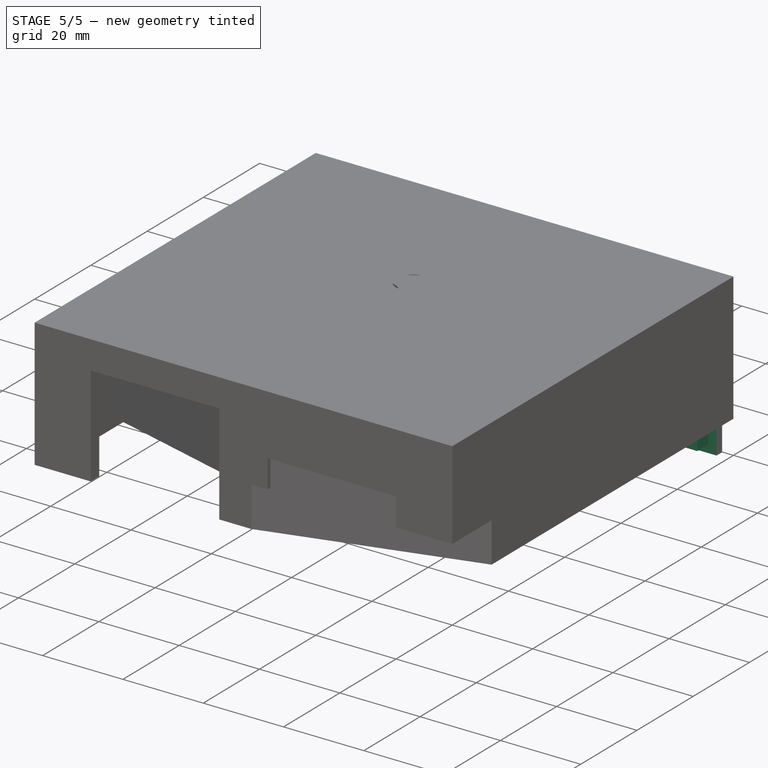
[diagram: stage 5 of 5 — iso view after this stage's code; geometry added in this stage tinted green]
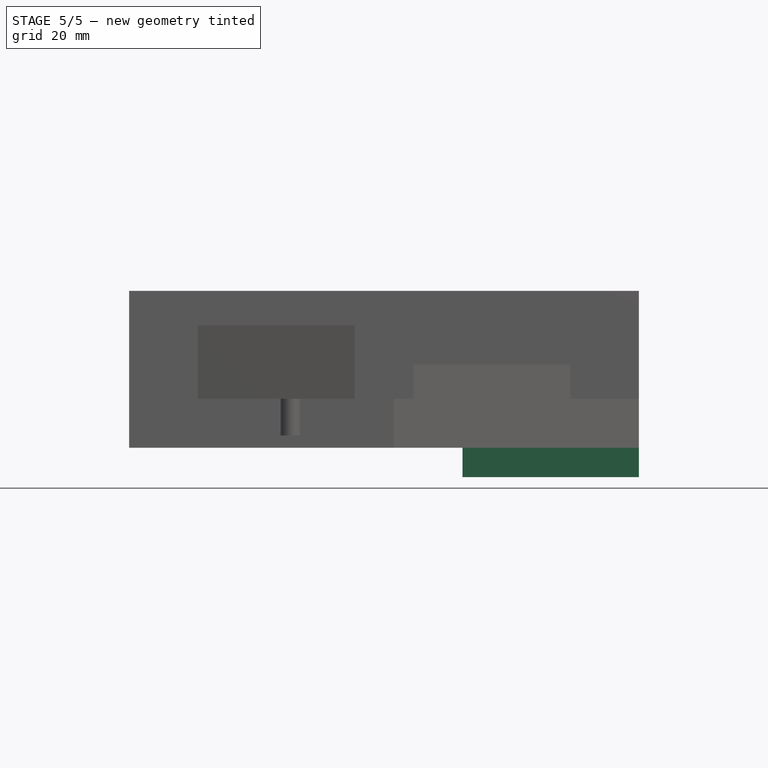
[diagram: stage 5 of 5 — front view after this stage's code; geometry added in this stage tinted green]
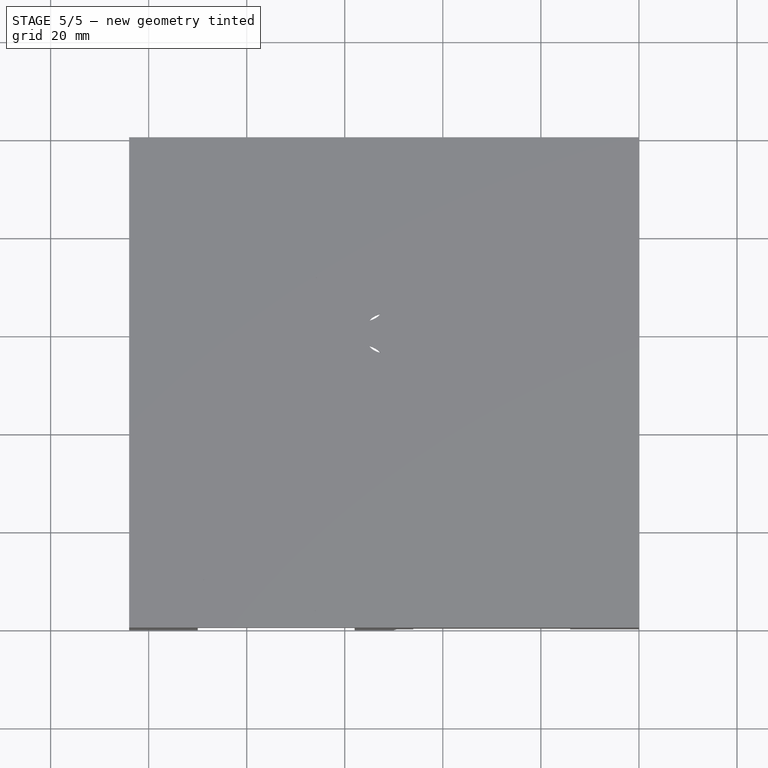
[diagram: stage 5 of 5 — top view after this stage's code; geometry added in this stage tinted green]
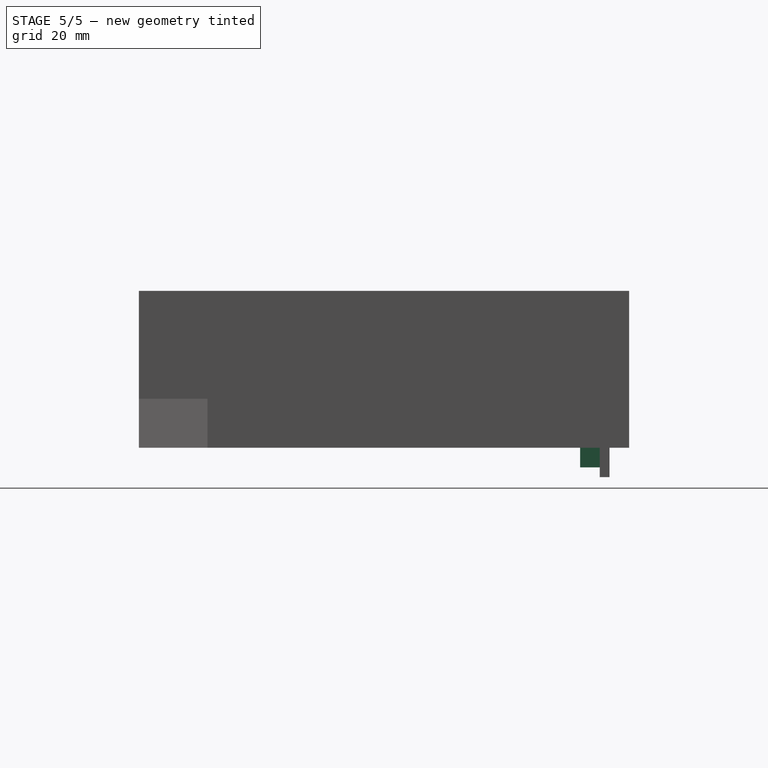
[diagram: stage 5 of 5 — right view after this stage's code; geometry added in this stage tinted green]
FEATURE [Sketcher::SketchObject] Sketch014
  FullyConstrained = true
  Placement = pos=(0,0,0) rot=(1,0,0;1.5708rad)
  sketch-geometry (8):
    g0: LineSegment StartX=-36 StartY=0 StartZ=0 EndX=0 EndY=0 EndZ=0
    g1: LineSegment StartX=0 StartY=0 StartZ=0 EndX=0 EndY=-36 EndZ=0
    g2: LineSegment StartX=0 StartY=-36 StartZ=0 EndX=-36 EndY=-36 EndZ=0
    g3: LineSegment StartX=-36 StartY=-36 StartZ=0 EndX=-36 EndY=0 EndZ=0
    g4: LineSegment StartX=-32 StartY=-4 StartZ=0 EndX=-4 EndY=-4 EndZ=0
    g5: LineSegment StartX=-4 StartY=-4 StartZ=0 EndX=-4 EndY=-32 EndZ=0
    g6: LineSegment StartX=-4 StartY=-32 StartZ=0 EndX=-32 EndY=-32 EndZ=0
    g7: LineSegment StartX=-32 StartY=-32 StartZ=0 EndX=-32 EndY=-4 EndZ=0
  constraints (24):
    c: Coincident(g0,g1)
    c: Coincident(g1,g2)
    c: Coincident(g2,g3)
    c: Coincident(g3,g0)
    c: Horizontal(g0)
    c: Horizontal(g2)
    c: Vertical(g1)
    c: Vertical(g3)
    c: PointOnObject(g0,g-1)
    c: Distance(g1) = 36
    c: Distance(g0) = 36
    c: Coincident(g4,g5)
    c: Coincident(g5,g6)
    c: Coincident(g6,g7)
    c: Coincident(g7,g4)
    c: Horizontal(g4)
    c: Horizontal(g6)
    c: Vertical(g5)
    c: Vertical(g7)
    c: Distance(g4) = 28
    c: Distance(g5) = 28
    c: DistanceY(g4,g0) = 4
    c: DistanceX(g4,g0) = 4
    c: DistanceX(g0,g-1) = 0
FEATURE [Part::Extrusion] Extrude013
  Base = -> Sketch014
  Dir = (0,-1,2e-16)
  DirMode = 2
  FaceMakerClass = Part::FaceMakerBullseye
  LengthFwd = 2
  LengthRev = 0
  Placement = pos=(0,-4,0) rot=(0,0,1;0rad)
  Solid = true
  Symmetric = false
FEATURE [Sketcher::SketchObject] Sketch016
  FullyConstrained = true
  Placement = pos=(0,0,0) rot=(1,0,0;1.5708rad)
  sketch-geometry (5):
    g0: LineSegment StartX=-34 StartY=-2 StartZ=0 EndX=-2 EndY=-2 EndZ=0
    g1: LineSegment StartX=-2 StartY=-2 StartZ=0 EndX=-2 EndY=-34 EndZ=0
    g2: LineSegment StartX=-2 StartY=-34 StartZ=0 EndX=-34 EndY=-34 EndZ=0
    g3: LineSegment StartX=-34 StartY=-34 StartZ=0 EndX=-34 EndY=-2 EndZ=0
    g4: Circle CenterX=-18 CenterY=-18 CenterZ=0 NormalX=0 NormalY=0 NormalZ=1 AngleXU=0 Radius=9.75
  constraints (15):
    c: Coincident(g0,g1)
    c: Coincident(g1,g2)
    c: Coincident(g2,g3)
    c: Coincident(g3,g0)
    c: Horizontal(g0)
    c: Horizontal(g2)
    c: Vertical(g1)
    c: Vertical(g3)
    c: Distance(g0) = 32
    c: Distance(g1) = 32
    c: DistanceX(g0,g-1) = 2
    c: DistanceY(g0,g-1) = 2
    c: Diameter(g4) = 19.5
    c: DistanceY(g4,g0) = 16
    c: DistanceX(g4,g0) = 16
FEATURE [Part::Extrusion] Extrude015
  Base = -> Sketch016
  Dir = (0,-1,2e-16)
  DirMode = 2
  FaceMakerClass = Part::FaceMakerBullseye
  LengthFwd = 6
  LengthRev = 0
  Placement = pos=(0,-4,0) rot=(0,0,1;0rad)
  Solid = true
  Symmetric = false
FEATURE [Sketcher::SketchObject] Sketch017
  FullyConstrained = true
  Placement = pos=(0,0,0) rot=(1,0,0;1.5708rad)
  sketch-geometry (2):
    g0: Circle CenterX=-18 CenterY=-18 CenterZ=0 NormalX=0 NormalY=0 NormalZ=1 AngleXU=0 Radius=9.75
    g1: Circle CenterX=-18 CenterY=-18 CenterZ=0 NormalX=0 NormalY=0 NormalZ=1 AngleXU=0 Radius=10.75
  constraints (5):
    c: Diameter(g0) = 19.5
    c: Coincident(g1,g0)
    c: Diameter(g1) = 21.5
    c: DistanceY(g0,g-1) = 18
    c: DistanceX(g0,g-1) = 18
FEATURE [Part::Extrusion] Extrude016
  Base = -> Sketch017
  Dir = (0,-1,2e-16)
  DirMode = 2
  FaceMakerClass = Part::FaceMakerBullseye
  LengthFwd = 25
  LengthRev = 0
  Placement = pos=(0,-4,0) rot=(0,0,1;0rad)
  Solid = true
  Symmetric = false
FEATURE [Part::MultiFuse] Fusion002
  Shapes = -> [Extrude013,Extrude015,Extrude016]
FEATURE [App::Part] Part002  label="cable duct"
  Group = -> [Extrude013,Extrude015,Sketch014,Sketch016,Extrude016,Sketch017,Fusion002]
  Origin = -> Origin002
  Placement = pos=(-55.9995,-90.4244,-2.7) rot=(0,0,1;0rad)
FEATURE [Part::Cone] Cone
  Angle = 360
  AttacherType = Attacher::AttachEngine3D
  Height = 20
  Placement = pos=(-33,-9.1,-19.4) rot=(0,0,1;0rad)
  Radius1 = 2.1
  Radius2 = 6
FEATURE [Part::Cone] Cone001
  Angle = 360
  AttacherType = Attacher::AttachEngine3D
  Height = 20
  Placement = pos=(-91.1,-9.1,-19.4) rot=(0,0,1;0rad)
  Radius1 = 2.1
  Radius2 = 6
FEATURE [Part::MultiFuse] Fusion003
  Shapes = -> [Cone,Cone001,Cone002,Cone003,Cut004]
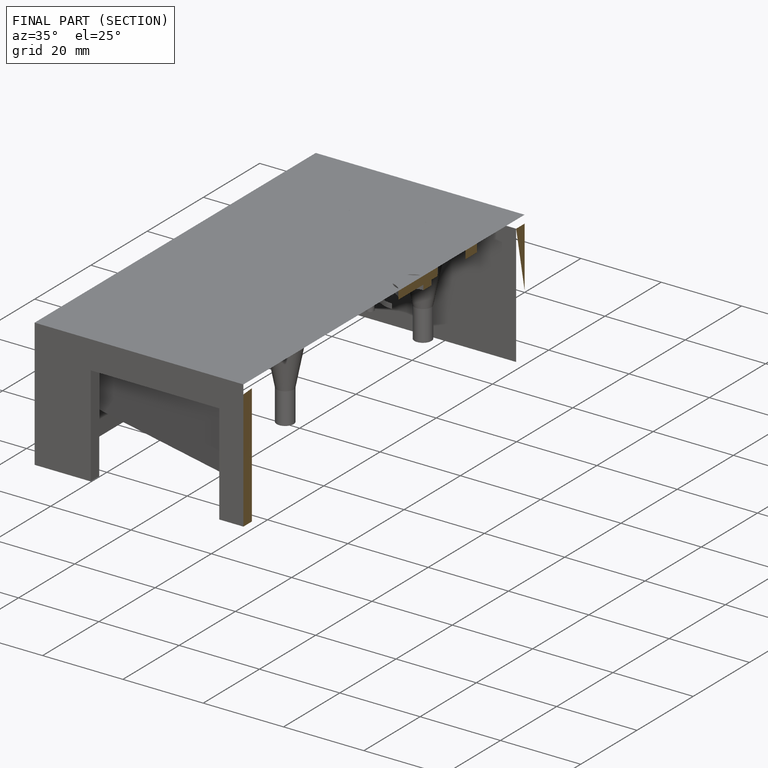
[diagram: finished part — half-section view (interior)]
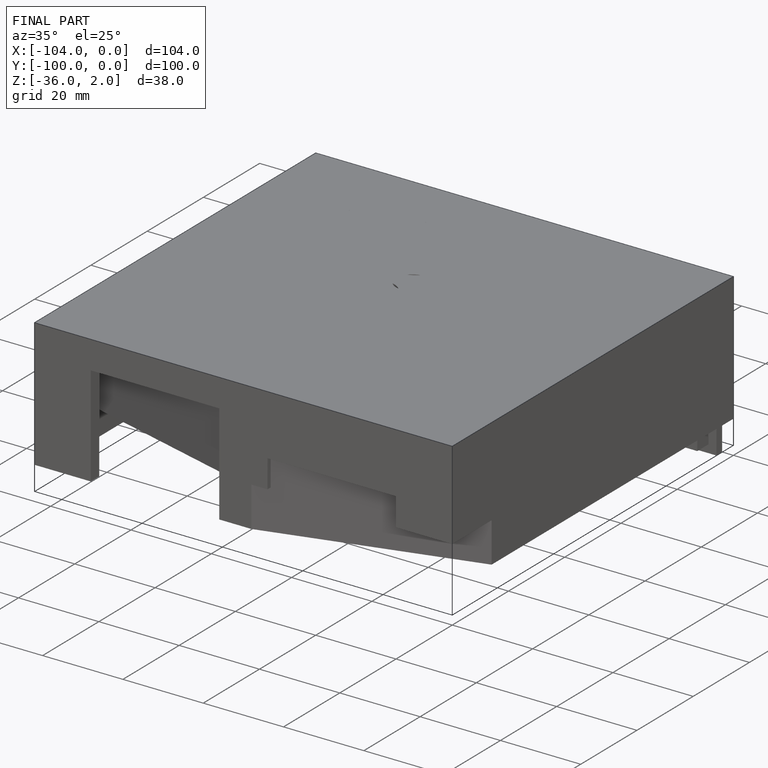
[diagram: finished part — iso view with bounding-box wireframe]
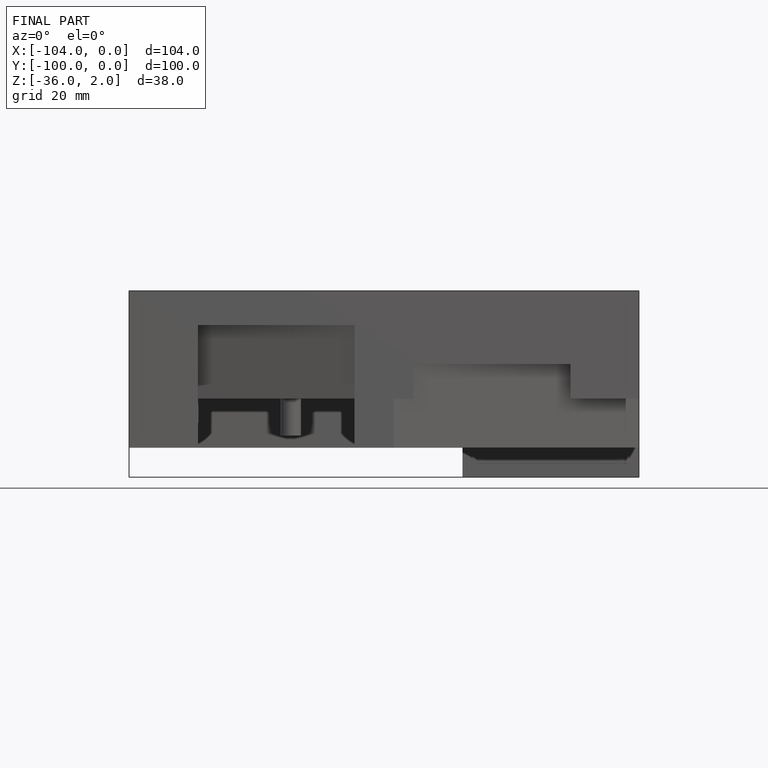
[diagram: finished part — front view with bounding-box wireframe]
